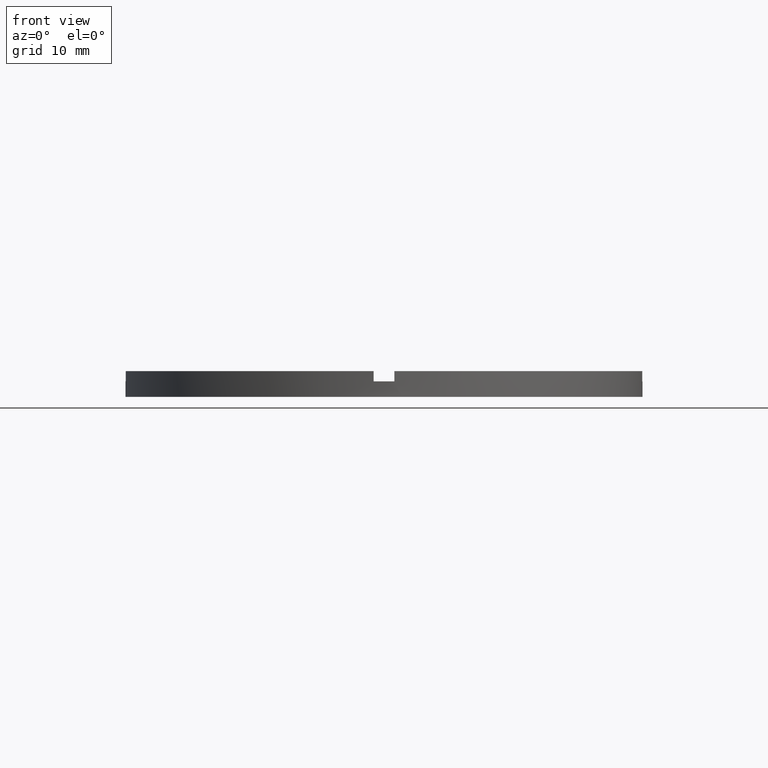
[diagram: clean part render]
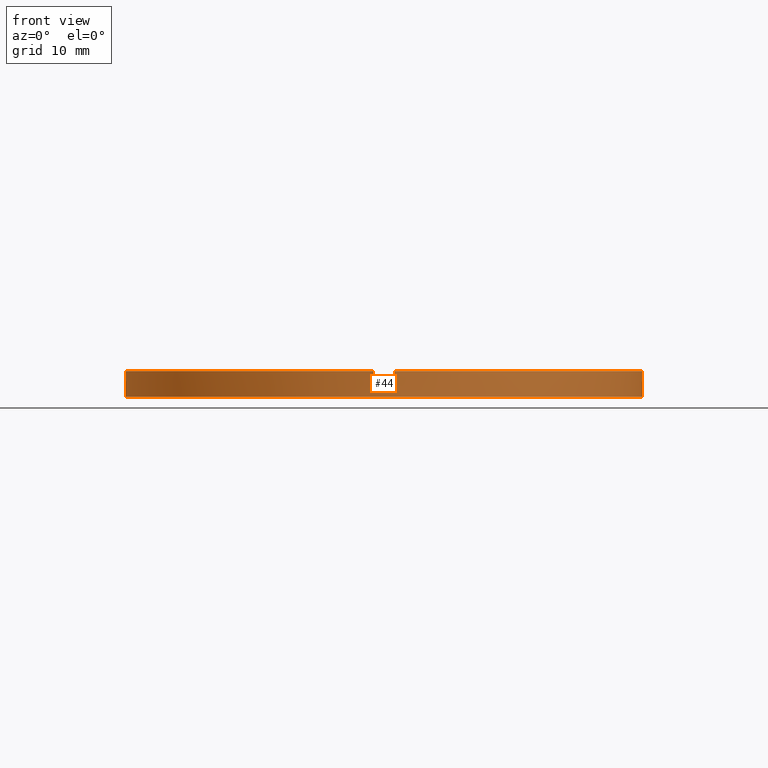
[diagram: same view with one face highlighted and labeled with its STEP entity id]
A machine part, front view. The second image highlights one B-rep face of the part: STEP entity #44.
In plain terms, the highlighted cylindrical surface (partial cylindrical patch) has radius 25 mm, axis along (-0, -0, -1).
Its self-contained STEP definition (entity closure, byte-faithful):
#12 = EDGE_CURVE ( 'NONE', #275, #412, #434, .T. ) ;
#26 = EDGE_CURVE ( 'NONE', #509, #164, #396, .T. ) ;
#36 = DIRECTION ( 'NONE',  ( -0.000000000000000000, -0.000000000000000000, -1.000000000000000000 ) ) ;
#44 = ADVANCED_FACE ( 'NONE', ( #668 ), #663, .T. ) ;
#52 = CIRCLE ( 'NONE', #392, 25.00000000000000000 ) ;
#74 = CARTESIAN_POINT ( 'NONE',  ( -25.00000000000000000, 0.000000000000000000, 2.500000000000000000 ) ) ;
#79 = DIRECTION ( 'NONE',  ( -0.000000000000000000, -0.000000000000000000, -1.000000000000000000 ) ) ;
#86 = CARTESIAN_POINT ( 'NONE',  ( -1.000000000000160538, -24.97999199359358968, 1.500000000000000000 ) ) ;
#105 = CARTESIAN_POINT ( 'NONE',  ( 24.97999199359358968, -1.000000000000157430, 1.500000000000000000 ) ) ;
#125 = CARTESIAN_POINT ( 'NONE',  ( 25.00000000000000000, 3.061616997868383043E-15, 2.500000000000000000 ) ) ;
#133 = CARTESIAN_POINT ( 'NONE',  ( 0.000000000000000000, 0.000000000000000000, 1.500000000000000000 ) ) ;
#140 = DIRECTION ( 'NONE',  ( 0.000000000000000000, 0.000000000000000000, 1.000000000000000000 ) ) ;
#148 = ORIENTED_EDGE ( 'NONE', *, *, #535, .F. ) ;
#154 = EDGE_CURVE ( 'NONE', #564, #725, #684, .T. ) ;
#155 = AXIS2_PLACEMENT_3D ( 'NONE', #780, #595, #514 ) ;
#160 = CARTESIAN_POINT ( 'NONE',  ( 25.00000000000000000, 3.061616997868383043E-15, 0.000000000000000000 ) ) ;
#164 = VERTEX_POINT ( 'NONE', #160 ) ;
#165 = CIRCLE ( 'NONE', #589, 25.00000000000000000 ) ;
#166 = ORIENTED_EDGE ( 'NONE', *, *, #26, .T. ) ;
#177 = VERTEX_POINT ( 'NONE', #522 ) ;
#178 = ORIENTED_EDGE ( 'NONE', *, *, #615, .F. ) ;
#179 = CARTESIAN_POINT ( 'NONE',  ( -1.000000000000160538, -24.97999199359358968, 2.500000000000000000 ) ) ;
#185 = EDGE_CURVE ( 'NONE', #564, #526, #165, .T. ) ;
#194 = CARTESIAN_POINT ( 'NONE',  ( 0.000000000000000000, 0.000000000000000000, 1.500000000000000000 ) ) ;
#197 = CIRCLE ( 'NONE', #588, 25.00000000000000000 ) ;
#230 = DIRECTION ( 'NONE',  ( 0.000000000000000000, 0.000000000000000000, 1.000000000000000000 ) ) ;
#231 = ORIENTED_EDGE ( 'NONE', *, *, #773, .F. ) ;
#232 = VERTEX_POINT ( 'NONE', #105 ) ;
#238 = ORIENTED_EDGE ( 'NONE', *, *, #12, .T. ) ;
#249 = DIRECTION ( 'NONE',  ( -0.000000000000000000, -0.000000000000000000, -1.000000000000000000 ) ) ;
#258 = CARTESIAN_POINT ( 'NONE',  ( -25.00000000000000000, 0.000000000000000000, 1.500000000000000000 ) ) ;
#275 = VERTEX_POINT ( 'NONE', #710 ) ;
#278 = ORIENTED_EDGE ( 'NONE', *, *, #634, .T. ) ;
#281 = DIRECTION ( 'NONE',  ( 1.000000000000000000, 0.000000000000000000, 0.000000000000000000 ) ) ;
#282 = DIRECTION ( 'NONE',  ( 1.000000000000000000, 0.000000000000000000, 0.000000000000000000 ) ) ;
#283 = AXIS2_PLACEMENT_3D ( 'NONE', #133, #576, #398 ) ;
#284 = LINE ( 'NONE', #179, #547 ) ;
#285 = EDGE_CURVE ( 'NONE', #757, #509, #464, .T. ) ;
#293 = DIRECTION ( 'NONE',  ( -0.000000000000000000, -0.000000000000000000, -1.000000000000000000 ) ) ;
#299 = CARTESIAN_POINT ( 'NONE',  ( -24.97999199359359679, -1.000000000000025979, 2.500000000000000000 ) ) ;
#301 = CIRCLE ( 'NONE', #283, 25.00000000000000000 ) ;
#310 = DIRECTION ( 'NONE',  ( -0.000000000000000000, -0.000000000000000000, -1.000000000000000000 ) ) ;
#314 = DIRECTION ( 'NONE',  ( 0.000000000000000000, 0.000000000000000000, 1.000000000000000000 ) ) ;
#319 = DIRECTION ( 'NONE',  ( 0.000000000000000000, 0.000000000000000000, 1.000000000000000000 ) ) ;
#325 = EDGE_CURVE ( 'NONE', #232, #177, #745, .T. ) ;
#341 = CARTESIAN_POINT ( 'NONE',  ( -25.00000000000000000, 0.000000000000000000, 0.000000000000000000 ) ) ;
#390 = VECTOR ( 'NONE', #36, 1000.000000000000000 ) ;
#392 = AXIS2_PLACEMENT_3D ( 'NONE', #194, #617, #504 ) ;
#396 = CIRCLE ( 'NONE', #155, 25.00000000000000000 ) ;
#398 = DIRECTION ( 'NONE',  ( 1.000000000000000000, 0.000000000000000000, 0.000000000000000000 ) ) ;
#399 = EDGE_LOOP ( 'NONE', ( #178, #426, #534, #148, #238, #231, #278, #760, #525, #539, #691, #166 ) ) ;
#402 = VECTOR ( 'NONE', #310, 1000.000000000000000 ) ;
#404 = VERTEX_POINT ( 'NONE', #86 ) ;
#412 = VERTEX_POINT ( 'NONE', #661 ) ;
#426 = ORIENTED_EDGE ( 'NONE', *, *, #543, .F. ) ;
#434 = LINE ( 'NONE', #664, #390 ) ;
#451 = VECTOR ( 'NONE', #319, 1000.000000000000000 ) ;
#452 = CARTESIAN_POINT ( 'NONE',  ( 0.000000000000000000, 0.000000000000000000, 2.500000000000000000 ) ) ;
#457 = LINE ( 'NONE', #125, #732 ) ;
#460 = VECTOR ( 'NONE', #249, 1000.000000000000000 ) ;
#461 = DIRECTION ( 'NONE',  ( 0.000000000000000000, 0.000000000000000000, 1.000000000000000000 ) ) ;
#464 = LINE ( 'NONE', #74, #460 ) ;
#482 = CARTESIAN_POINT ( 'NONE',  ( 24.97999199359358968, -1.000000000000157430, 2.500000000000000000 ) ) ;
#504 = DIRECTION ( 'NONE',  ( 1.000000000000000000, 0.000000000000000000, 0.000000000000000000 ) ) ;
#509 = VERTEX_POINT ( 'NONE', #341 ) ;
#514 = DIRECTION ( 'NONE',  ( 1.000000000000000000, 0.000000000000000000, 0.000000000000000000 ) ) ;
#519 = CARTESIAN_POINT ( 'NONE',  ( 0.000000000000000000, 0.000000000000000000, 1.500000000000000000 ) ) ;
#522 = CARTESIAN_POINT ( 'NONE',  ( 24.97999199359358968, -1.000000000000157430, 2.500000000000000000 ) ) ;
#525 = ORIENTED_EDGE ( 'NONE', *, *, #154, .T. ) ;
#526 = VERTEX_POINT ( 'NONE', #597 ) ;
#527 = VERTEX_POINT ( 'NONE', #538 ) ;
#534 = ORIENTED_EDGE ( 'NONE', *, *, #325, .T. ) ;
#535 = EDGE_CURVE ( 'NONE', #275, #177, #730, .T. ) ;
#538 = CARTESIAN_POINT ( 'NONE',  ( 25.00000000000000000, 3.061616997868383043E-15, 1.500000000000000000 ) ) ;
#539 = ORIENTED_EDGE ( 'NONE', *, *, #705, .F. ) ;
#543 = EDGE_CURVE ( 'NONE', #232, #527, #197, .T. ) ;
#547 = VECTOR ( 'NONE', #314, 1000.000000000000000 ) ;
#564 = VERTEX_POINT ( 'NONE', #607 ) ;
#576 = DIRECTION ( 'NONE',  ( 0.000000000000000000, 0.000000000000000000, 1.000000000000000000 ) ) ;
#588 = AXIS2_PLACEMENT_3D ( 'NONE', #519, #230, #282 ) ;
#589 = AXIS2_PLACEMENT_3D ( 'NONE', #452, #140, #692 ) ;
#595 = DIRECTION ( 'NONE',  ( 0.000000000000000000, 0.000000000000000000, 1.000000000000000000 ) ) ;
#597 = CARTESIAN_POINT ( 'NONE',  ( -1.000000000000160538, -24.97999199359358968, 2.500000000000000000 ) ) ;
#607 = CARTESIAN_POINT ( 'NONE',  ( -24.97999199359359679, -1.000000000000025979, 2.500000000000000000 ) ) ;
#615 = EDGE_CURVE ( 'NONE', #527, #164, #457, .T. ) ;
#617 = DIRECTION ( 'NONE',  ( -0.000000000000000000, 0.000000000000000000, 1.000000000000000000 ) ) ;
#634 = EDGE_CURVE ( 'NONE', #404, #526, #284, .T. ) ;
#637 = CARTESIAN_POINT ( 'NONE',  ( 0.000000000000000000, 0.000000000000000000, 2.500000000000000000 ) ) ;
#661 = CARTESIAN_POINT ( 'NONE',  ( 0.9999999999998395728, -24.97999199359360034, 1.500000000000000000 ) ) ;
#663 = CYLINDRICAL_SURFACE ( 'NONE', #722, 25.00000000000000000 ) ;
#664 = CARTESIAN_POINT ( 'NONE',  ( 0.9999999999998395728, -24.97999199359360034, 2.500000000000000000 ) ) ;
#668 = FACE_OUTER_BOUND ( 'NONE', #399, .T. ) ;
#675 = DIRECTION ( 'NONE',  ( -1.000000000000000000, 0.000000000000000000, 0.000000000000000000 ) ) ;
#683 = CARTESIAN_POINT ( 'NONE',  ( 0.000000000000000000, 0.000000000000000000, 2.500000000000000000 ) ) ;
#684 = LINE ( 'NONE', #299, #402 ) ;
#691 = ORIENTED_EDGE ( 'NONE', *, *, #285, .T. ) ;
#692 = DIRECTION ( 'NONE',  ( 1.000000000000000000, 0.000000000000000000, 0.000000000000000000 ) ) ;
#705 = EDGE_CURVE ( 'NONE', #757, #725, #301, .T. ) ;
#710 = CARTESIAN_POINT ( 'NONE',  ( 0.9999999999998395728, -24.97999199359360034, 2.500000000000000000 ) ) ;
#722 = AXIS2_PLACEMENT_3D ( 'NONE', #683, #293, #675 ) ;
#725 = VERTEX_POINT ( 'NONE', #731 ) ;
#730 = CIRCLE ( 'NONE', #778, 25.00000000000000000 ) ;
#731 = CARTESIAN_POINT ( 'NONE',  ( -24.97999199359359679, -1.000000000000025979, 1.500000000000000000 ) ) ;
#732 = VECTOR ( 'NONE', #79, 1000.000000000000000 ) ;
#745 = LINE ( 'NONE', #482, #451 ) ;
#757 = VERTEX_POINT ( 'NONE', #258 ) ;
#760 = ORIENTED_EDGE ( 'NONE', *, *, #185, .F. ) ;
#773 = EDGE_CURVE ( 'NONE', #404, #412, #52, .T. ) ;
#778 = AXIS2_PLACEMENT_3D ( 'NONE', #637, #461, #281 ) ;
#780 = CARTESIAN_POINT ( 'NONE',  ( 0.000000000000000000, 0.000000000000000000, 0.000000000000000000 ) ) ;